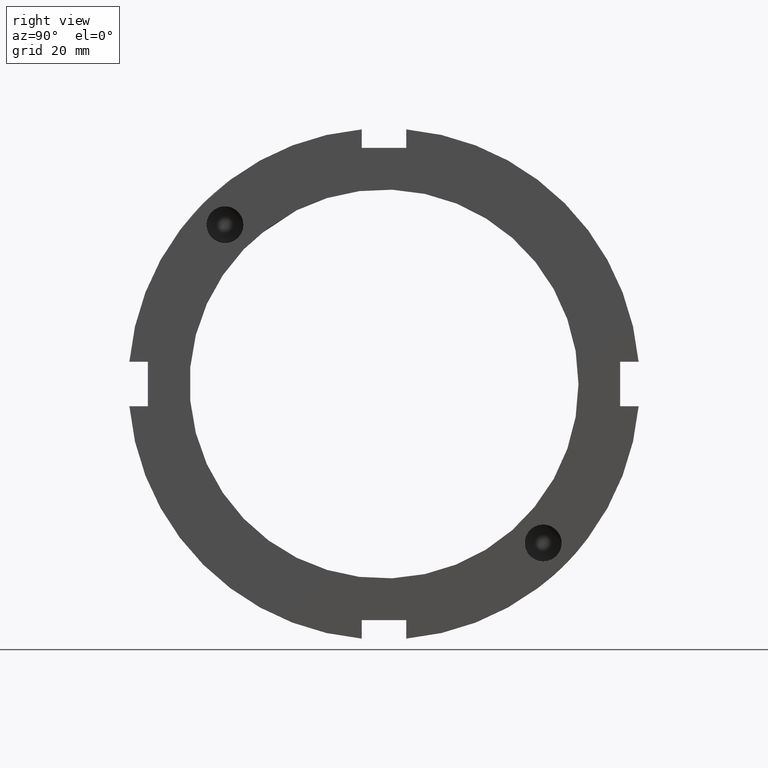
[diagram: clean part render]
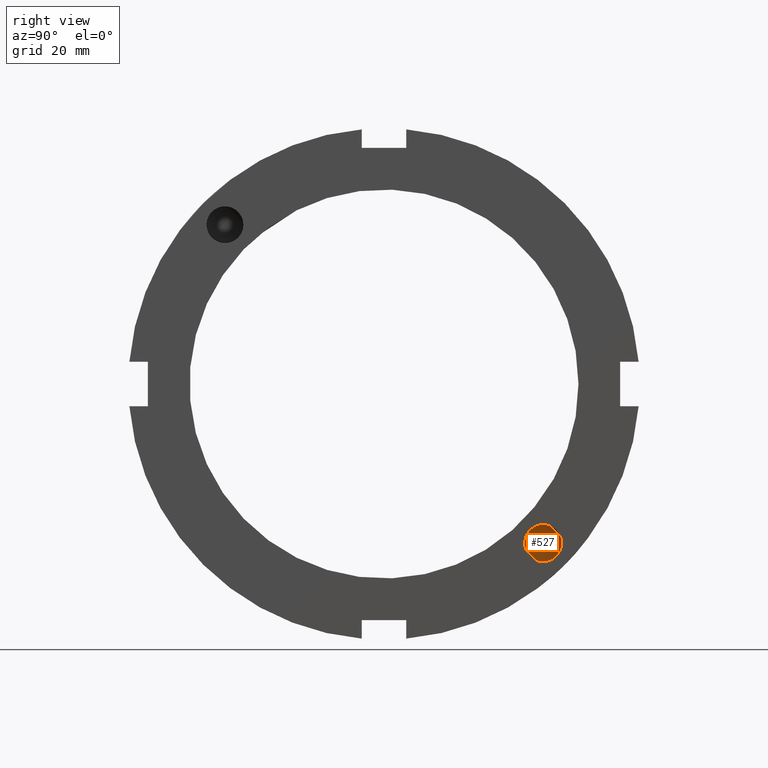
[diagram: same view with one face highlighted and labeled with its STEP entity id]
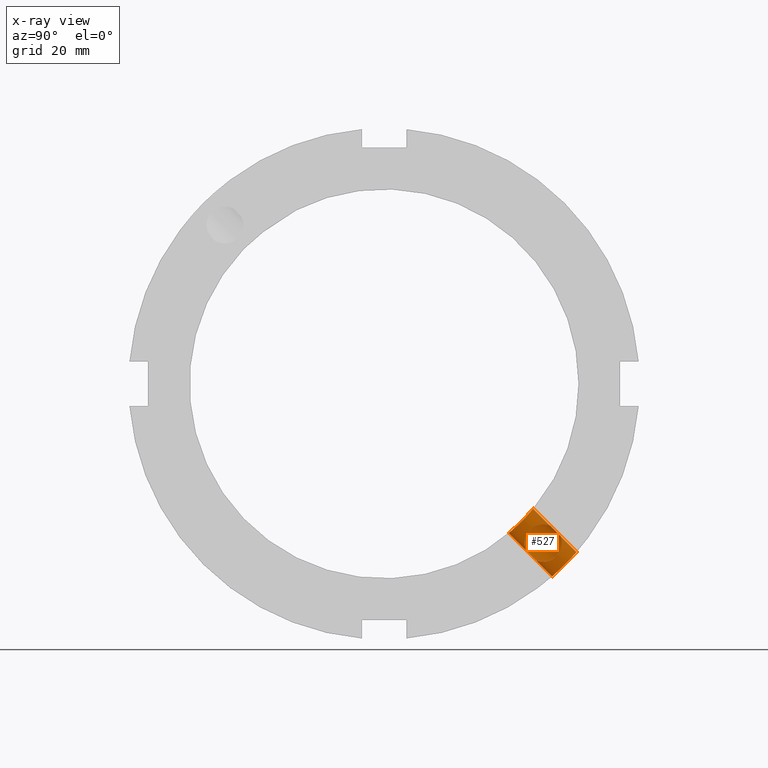
[diagram: x-ray of the same camera — body ghosted, the highlighted face saturated]
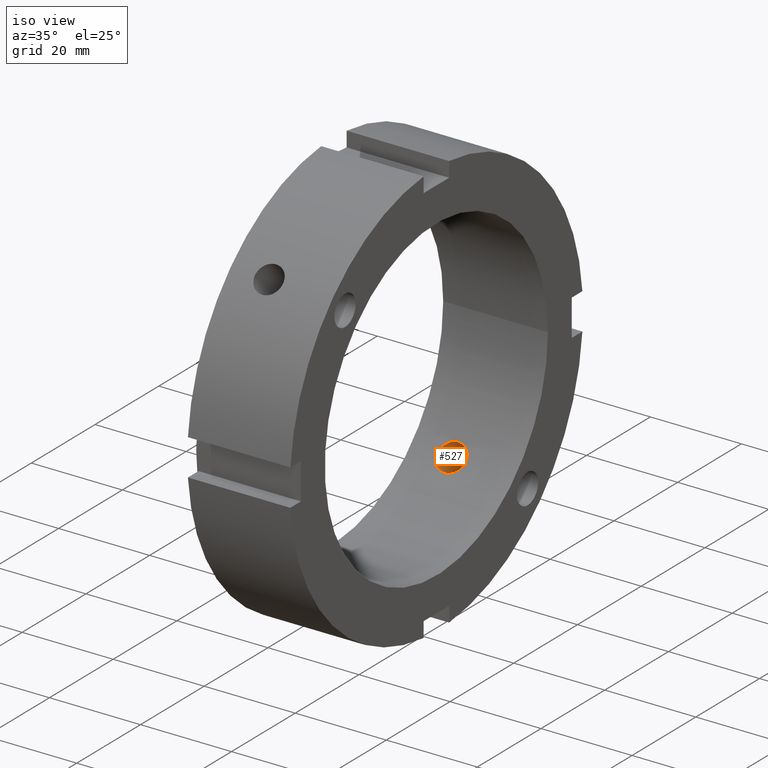
[diagram: same view with one face highlighted and labeled with its STEP entity id]
A machine part, right view. The second image highlights one B-rep face of the part: STEP entity #527.
The next image is the same camera in x-ray: the body ghosted, the highlighted face saturated — about 0% of this face is hidden behind the body in this view.
A second angle (iso view) of the same face is appended — the face is thin or edge-on in the first view.
In plain terms, the highlighted cylindrical surface (bore or boss wall) has radius 3.1 mm, axis along (0, -0.7071, 0.7071).
Its self-contained STEP definition (entity closure, byte-faithful):
#303=CARTESIAN_POINT('',(8.999999999999988,25.598547415441175,-29.982609458797779));
#304=VERTEX_POINT('',#303);
#305=CARTESIAN_POINT('',(8.999999999999988,27.293039817312557,-31.677101860669161));
#306=VERTEX_POINT('',#305);
#307=CARTESIAN_POINT('',(8.999999999999988,25.598547415441178,-29.982609458797782));
#308=CARTESIAN_POINT('',(8.912387462388345,25.884535919381683,-30.268597962738287));
#309=CARTESIAN_POINT('',(8.863911961712329,26.171815355450441,-30.551650979268992));
#310=CARTESIAN_POINT('',(8.863911961712329,26.447906826145893,-30.82774244996444));
#311=CARTESIAN_POINT('',(8.863911961712329,26.71975257710702,-31.099588200925574));
#312=CARTESIAN_POINT('',(8.911968600355394,27.005684046432567,-31.389746089789167));
#313=CARTESIAN_POINT('',(8.999999999999988,27.293039817312561,-31.677101860669161));
#314=B_SPLINE_CURVE_WITH_KNOTS('',3,(#307,#308,#309,#310,#311,#312,#313),.UNSPECIFIED.,.F.,.U.,(4,3,4),(-0.117135690693911,0.0,0.115334384364818),.UNSPECIFIED.);
#315=EDGE_CURVE('',#304,#306,#314,.T.);
#332=CARTESIAN_POINT('',(8.999999999999988,31.677101860669193,-27.293039817312611));
#333=VERTEX_POINT('',#332);
#334=CARTESIAN_POINT('',(8.999999999999989,29.982609458797725,-25.598547415441139));
#335=VERTEX_POINT('',#334);
#336=CARTESIAN_POINT('',(8.999999999999988,31.677101860669197,-27.293039817312604));
#337=CARTESIAN_POINT('',(8.911968600355385,31.389746089789185,-27.005684046432595));
#338=CARTESIAN_POINT('',(8.863911961712315,31.099588200925577,-26.719752577107023));
#339=CARTESIAN_POINT('',(8.863911961712315,30.551650979742242,-26.171815355923687));
#340=CARTESIAN_POINT('',(8.912387462444677,30.268597962554338,-25.884535919197752));
#341=CARTESIAN_POINT('',(8.999999999999989,29.982609458797725,-25.598547415441139));
#342=B_SPLINE_CURVE_WITH_KNOTS('',3,(#336,#337,#338,#339,#340,#341),.UNSPECIFIED.,.F.,.U.,(4,2,4),(1.843478900417879,1.958813284782703,2.075948975275829),.UNSPECIFIED.);
#343=EDGE_CURVE('',#333,#335,#342,.T.);
#360=CARTESIAN_POINT('',(8.999999999999988,27.293039817312568,-31.677101860669165));
#361=CARTESIAN_POINT('',(9.23356982528963,27.293039817312568,-31.677101860669165));
#362=CARTESIAN_POINT('',(9.44096630263806,27.357690400733958,-31.706590090640709));
#363=CARTESIAN_POINT('',(9.836840674384996,27.54835507609474,-31.779339922652614));
#364=CARTESIAN_POINT('',(10.024806661991303,27.675462034264207,-31.822517867370639));
#365=CARTESIAN_POINT('',(10.572531601479485,28.114112189185555,-31.933634675150174));
#366=CARTESIAN_POINT('',(10.911351554404817,28.481647217765769,-31.978587927063554));
#367=CARTESIAN_POINT('',(11.44492654453818,29.190005874486204,-31.932357596194294));
#368=CARTESIAN_POINT('',(11.681418961330905,29.575918235017472,-31.852226304914616));
#369=CARTESIAN_POINT('',(11.92743610565806,30.138593256977259,-31.610202910161412));
#370=CARTESIAN_POINT('',(11.991937069006077,30.323782586568999,-31.509736502573542));
#371=CARTESIAN_POINT('',(12.078237878842899,30.674035591670254,-31.273005260868416));
#372=CARTESIAN_POINT('',(12.099999999999987,30.839083984666882,-31.136704065990447));
#373=CARTESIAN_POINT('',(12.099999999999991,31.136704065990433,-30.839083984666896));
#374=CARTESIAN_POINT('',(12.078237878842899,31.273005260868398,-30.674035591670265));
#375=CARTESIAN_POINT('',(11.991937069006077,31.509736502573539,-30.323782586569003));
#376=CARTESIAN_POINT('',(11.92743610565806,31.610202910161405,-30.13859325697727));
#377=CARTESIAN_POINT('',(11.681418961330907,31.852226304914616,-29.57591823501749));
#378=CARTESIAN_POINT('',(11.444926544538184,31.932357596194297,-29.190005874486221));
#379=CARTESIAN_POINT('',(10.911351554404822,31.978587927063558,-28.48164721776579));
#380=CARTESIAN_POINT('',(10.572531601479474,31.933634675150195,-28.114112189185576));
#381=CARTESIAN_POINT('',(10.024806661991288,31.822517867370664,-27.675462034264235));
#382=CARTESIAN_POINT('',(9.836840674384984,31.779339922652639,-27.548355076094765));
#383=CARTESIAN_POINT('',(9.440966302638053,31.706590090640738,-27.357690400733986));
#384=CARTESIAN_POINT('',(9.233569825289628,31.677101860669197,-27.293039817312604));
#385=CARTESIAN_POINT('',(8.999999999999988,31.677101860669197,-27.293039817312604));
#386=B_SPLINE_CURVE_WITH_KNOTS('',3,(#360,#361,#362,#363,#364,#365,#366,#367,#368,#369,#370,#371,#372,#373,#374,#375,#376,#377,#378,#379,#380,#381,#382,#383,#384,#385),.UNSPECIFIED.,.F.,.U.,(4,2,2,2,2,2,2,2,2,2,2,2,4),(0.0,0.070070947586892,0.140141895173785,0.280283790347569,0.406553296980275,0.469688050296627,0.53282280361298,0.595957556929333,0.659092310245685,0.785361816878391,0.925503712052175,0.995574659639066,1.065645607225958),.UNSPECIFIED.);
#387=EDGE_CURVE('',#306,#333,#386,.T.);
#390=CARTESIAN_POINT('',(8.999999999999988,29.982609458797729,-25.598547415441139));
#391=CARTESIAN_POINT('',(9.233569825289628,29.982609458797729,-25.598547415441139));
#392=CARTESIAN_POINT('',(9.440966302638055,29.917958875376335,-25.569059185469598));
#393=CARTESIAN_POINT('',(9.836840674384989,29.727294200015557,-25.496309353457697));
#394=CARTESIAN_POINT('',(10.024806661991299,29.600187241846101,-25.453131408739679));
#395=CARTESIAN_POINT('',(10.572531601479479,29.16153708692476,-25.342014600960141));
#396=CARTESIAN_POINT('',(10.911351554404822,28.794002058344542,-25.297061349046768));
#397=CARTESIAN_POINT('',(11.444926544538184,28.085643401624111,-25.343291679916028));
#398=CARTESIAN_POINT('',(11.681418961330905,27.69973104109285,-25.42342297119572));
#399=CARTESIAN_POINT('',(11.92743610565806,27.13705601913307,-25.665446365948927));
#400=CARTESIAN_POINT('',(11.991937069006077,26.95186668954133,-25.765912773536787));
#401=CARTESIAN_POINT('',(12.078237878842899,26.601613684440068,-26.002644015241923));
#402=CARTESIAN_POINT('',(12.099999999999989,26.436565291443451,-26.13894521011991));
#403=CARTESIAN_POINT('',(12.099999999999989,26.1389452101199,-26.436565291443472));
#404=CARTESIAN_POINT('',(12.078237878842899,26.002644015241923,-26.601613684440078));
#405=CARTESIAN_POINT('',(11.991937069006077,25.765912773536787,-26.95186668954134));
#406=CARTESIAN_POINT('',(11.927436105658057,25.665446365948924,-27.13705601913308));
#407=CARTESIAN_POINT('',(11.681418961330902,25.42342297119572,-27.699731041092864));
#408=CARTESIAN_POINT('',(11.444926544538179,25.343291679916035,-28.085643401624125));
#409=CARTESIAN_POINT('',(10.911351554404817,25.297061349046778,-28.79400205834456));
#410=CARTESIAN_POINT('',(10.572531601479474,25.342014600960159,-29.161537086924785));
#411=CARTESIAN_POINT('',(10.024806661991292,25.453131408739694,-29.600187241846125));
#412=CARTESIAN_POINT('',(9.836840674384984,25.496309353457718,-29.727294200015596));
#413=CARTESIAN_POINT('',(9.440966302638056,25.569059185469627,-29.917958875376375));
#414=CARTESIAN_POINT('',(9.23356982528963,25.598547415441175,-29.982609458797779));
#415=CARTESIAN_POINT('',(8.999999999999989,25.598547415441175,-29.982609458797779));
#416=B_SPLINE_CURVE_WITH_KNOTS('',3,(#390,#391,#392,#393,#394,#395,#396,#397,#398,#399,#400,#401,#402,#403,#404,#405,#406,#407,#408,#409,#410,#411,#412,#413,#414,#415),.UNSPECIFIED.,.F.,.U.,(4,2,2,2,2,2,2,2,2,2,2,2,4),(-1.065645607225957,-0.995574659639065,-0.925503712052173,-0.78536181687839,-0.659092310245684,-0.595957556929332,-0.532822803612979,-0.469688050296627,-0.406553296980274,-0.280283790347569,-0.140141895173785,-0.070070947586892,0.0),.UNSPECIFIED.);
#417=EDGE_CURVE('',#335,#304,#416,.T.);
#434=CARTESIAN_POINT('',(8.999999999999988,93.083296031028055,-93.08329603102807));
#435=DIRECTION('',(0.0,-0.707106781186547,0.707106781186548));
#436=DIRECTION('',(1.0,0.0,0.0));
#437=AXIS2_PLACEMENT_3D('',#434,#435,#436);
#438=CYLINDRICAL_SURFACE('',#437,3.100000000000001);
#439=CARTESIAN_POINT('',(8.999999999999988,30.260934944470314,-34.644996987826914));
#440=VERTEX_POINT('',#439);
#441=CARTESIAN_POINT('',(8.999999999999989,30.260934944470307,-34.644996987826914));
#442=CARTESIAN_POINT('',(9.389369659459456,30.260934944470307,-34.644996987826914));
#443=CARTESIAN_POINT('',(9.804611949103807,30.319840368114473,-34.593820332374172));
#444=CARTESIAN_POINT('',(10.568352914941306,30.557527640555268,-34.384046149106652));
#445=CARTESIAN_POINT('',(10.916861619357467,30.736103279460178,-34.225251580172369));
#446=CARTESIAN_POINT('',(11.467200231800149,31.143816553478779,-33.854668524576937));
#447=CARTESIAN_POINT('',(11.705757141000738,31.400130209370239,-33.618116322715522));
#448=CARTESIAN_POINT('',(12.022160287955179,31.954110933131481,-33.092003818517483));
#449=CARTESIAN_POINT('',(12.099999999999991,32.251586200297382,-32.802237668864997));
#450=CARTESIAN_POINT('',(12.099999999999987,32.802237668864997,-32.251586200297389));
#451=CARTESIAN_POINT('',(12.022160287955177,33.092003818517476,-31.954110933131489));
#452=CARTESIAN_POINT('',(11.705757141000735,33.618116322715515,-31.400130209370243));
#453=CARTESIAN_POINT('',(11.467200231800149,33.85466852457693,-31.143816553478779));
#454=CARTESIAN_POINT('',(10.916861619357467,34.225251580172369,-30.736103279460181));
#455=CARTESIAN_POINT('',(10.568352914941304,34.384046149106638,-30.557527640555271));
#456=CARTESIAN_POINT('',(9.804611949103805,34.593820332374165,-30.31984036811448));
#457=CARTESIAN_POINT('',(9.389369659459456,34.644996987826914,-30.260934944470318));
#458=CARTESIAN_POINT('',(8.610630340540521,34.644996987826914,-30.260934944470318));
#459=CARTESIAN_POINT('',(8.195388050896174,34.593820332374165,-30.31984036811448));
#460=CARTESIAN_POINT('',(7.431647085058674,34.384046149106645,-30.557527640555268));
#461=CARTESIAN_POINT('',(7.083138380642509,34.225251580172369,-30.736103279460181));
#462=CARTESIAN_POINT('',(6.532799768199825,33.85466852457693,-31.143816553478779));
#463=CARTESIAN_POINT('',(6.294242858999239,33.618116322715515,-31.400130209370246));
#464=CARTESIAN_POINT('',(5.977839712044798,33.092003818517483,-31.954110933131489));
#465=CARTESIAN_POINT('',(5.899999999999988,32.802237668864997,-32.251586200297389));
#466=CARTESIAN_POINT('',(5.899999999999988,32.251586200297382,-32.802237668864997));
#467=CARTESIAN_POINT('',(5.977839712044794,31.954110933131492,-33.092003818517483));
#468=CARTESIAN_POINT('',(6.294242858999234,31.400130209370246,-33.618116322715522));
#469=CARTESIAN_POINT('',(6.532799768199824,31.143816553478779,-33.854668524576937));
#470=CARTESIAN_POINT('',(7.083138380642509,30.736103279460178,-34.225251580172369));
#471=CARTESIAN_POINT('',(7.431647085058669,30.557527640555268,-34.384046149106652));
#472=CARTESIAN_POINT('',(8.19538805089617,30.319840368114473,-34.593820332374172));
#473=CARTESIAN_POINT('',(8.610630340540521,30.260934944470307,-34.644996987826914));
#474=CARTESIAN_POINT('',(8.999999999999989,30.260934944470307,-34.644996987826914));
#475=B_SPLINE_CURVE_WITH_KNOTS('',3,(#441,#442,#443,#444,#445,#446,#447,#448,#449,#450,#451,#452,#453,#454,#455,#456,#457,#458,#459,#460,#461,#462,#463,#464,#465,#466,#467,#468,#469,#470,#471,#472,#473,#474),.UNSPECIFIED.,.T.,.U.,(4,2,2,2,2,2,2,2,2,2,2,2,2,2,2,2,4),(0.0,0.11681089783784,0.233621795675681,0.350432611924027,0.467243428172374,0.58405424442072,0.700865060669066,0.817675958506907,0.934486856344747,1.051297754182587,1.168108652020428,1.284919468268774,1.401730284517121,1.518541100765467,1.635351917013813,1.752162814851654,1.868973712689494),.UNSPECIFIED.);
#476=EDGE_CURVE('',#440,#440,#475,.T.);
#477=ORIENTED_EDGE('',*,*,#476,.F.);
#478=EDGE_LOOP('',(#477));
#479=FACE_OUTER_BOUND('',#478,.T.);
#480=ORIENTED_EDGE('',*,*,#315,.T.);
#481=ORIENTED_EDGE('',*,*,#387,.T.);
#482=ORIENTED_EDGE('',*,*,#343,.T.);
#483=ORIENTED_EDGE('',*,*,#417,.T.);
#484=EDGE_LOOP('',(#480,#481,#482,#483));
#485=FACE_BOUND('',#484,.T.);
#486=CARTESIAN_POINT('',(8.999999999999988,22.459439522692879,-26.843501566049483));
#487=VERTEX_POINT('',#486);
#488=CARTESIAN_POINT('',(8.999999999999988,22.459439522692879,-26.843501566049483));
#489=CARTESIAN_POINT('',(8.610537636438648,22.459439522692879,-26.843501566049483));
#490=CARTESIAN_POINT('',(8.195255709753413,22.519596250635985,-26.793525065202349));
#491=CARTESIAN_POINT('',(7.431540471652688,22.761715961517261,-26.588145612526549));
#492=CARTESIAN_POINT('',(7.083089740623294,22.943404179325533,-26.432483692662878));
#493=CARTESIAN_POINT('',(6.532848791165651,23.356899031255818,-26.067820331297114));
#494=CARTESIAN_POINT('',(6.294305774012422,23.616281927851791,-25.834419119903899));
#495=CARTESIAN_POINT('',(5.977875742269591,24.174629826618691,-25.312709378931849));
#496=CARTESIAN_POINT('',(5.899999999999988,24.473346438949495,-25.024128244108827));
#497=CARTESIAN_POINT('',(5.899999999999988,25.024128244108823,-24.473346438949498));
#498=CARTESIAN_POINT('',(5.977875742269594,25.312709378931846,-24.174629826618691));
#499=CARTESIAN_POINT('',(6.294305774012424,25.834419119903895,-23.616281927851798));
#500=CARTESIAN_POINT('',(6.532848791165651,26.06782033129711,-23.356899031255828));
#501=CARTESIAN_POINT('',(7.083089740623293,26.432483692662871,-22.943404179325533));
#502=CARTESIAN_POINT('',(7.43154047165269,26.588145612526542,-22.761715961517268));
#503=CARTESIAN_POINT('',(8.195255709753418,26.793525065202338,-22.519596250635992));
#504=CARTESIAN_POINT('',(8.610537636438647,26.843501566049479,-22.459439522692882));
#505=CARTESIAN_POINT('',(9.389462363561329,26.843501566049479,-22.459439522692882));
#506=CARTESIAN_POINT('',(9.804744290246557,26.793525065202338,-22.519596250635992));
#507=CARTESIAN_POINT('',(10.568459528347285,26.588145612526542,-22.761715961517268));
#508=CARTESIAN_POINT('',(10.916910259376685,26.432483692662878,-22.943404179325533));
#509=CARTESIAN_POINT('',(11.467151208834327,26.06782033129711,-23.356899031255828));
#510=CARTESIAN_POINT('',(11.705694225987553,25.834419119903895,-23.616281927851798));
#511=CARTESIAN_POINT('',(12.022124257730383,25.312709378931846,-24.174629826618691));
#512=CARTESIAN_POINT('',(12.099999999999991,25.024128244108823,-24.473346438949498));
#513=CARTESIAN_POINT('',(12.099999999999987,24.473346438949495,-25.024128244108823));
#514=CARTESIAN_POINT('',(12.022124257730386,24.174629826618698,-25.312709378931846));
#515=CARTESIAN_POINT('',(11.705694225987557,23.616281927851794,-25.834419119903895));
#516=CARTESIAN_POINT('',(11.467151208834325,23.356899031255818,-26.067820331297114));
#517=CARTESIAN_POINT('',(10.91691025937668,22.943404179325533,-26.432483692662878));
#518=CARTESIAN_POINT('',(10.568459528347285,22.761715961517261,-26.588145612526549));
#519=CARTESIAN_POINT('',(9.804744290246557,22.519596250635985,-26.793525065202349));
#520=CARTESIAN_POINT('',(9.389462363561329,22.459439522692879,-26.843501566049483));
#521=CARTESIAN_POINT('',(8.999999999999989,22.459439522692879,-26.843501566049483));
#522=B_SPLINE_CURVE_WITH_KNOTS('',3,(#488,#489,#490,#491,#492,#493,#494,#495,#496,#497,#498,#499,#500,#501,#502,#503,#504,#505,#506,#507,#508,#509,#510,#511,#512,#513,#514,#515,#516,#517,#518,#519,#520,#521),.UNSPECIFIED.,.T.,.U.,(4,2,2,2,2,2,2,2,2,2,2,2,2,2,2,2,4),(0.0,0.116838709068402,0.233677418136804,0.350515882951503,0.467354347766201,0.5841928125809,0.701031277395599,0.817869986464001,0.934708695532403,1.051547404600805,1.168386113669207,1.285224578483906,1.402063043298605,1.518901508113304,1.635739972928002,1.752578681996404,1.869417391064806),.UNSPECIFIED.);
#523=EDGE_CURVE('',#487,#487,#522,.T.);
#524=ORIENTED_EDGE('',*,*,#523,.F.);
#525=EDGE_LOOP('',(#524));
#526=FACE_BOUND('',#525,.T.);
#527=ADVANCED_FACE('',(#479,#485,#526),#438,.F.);